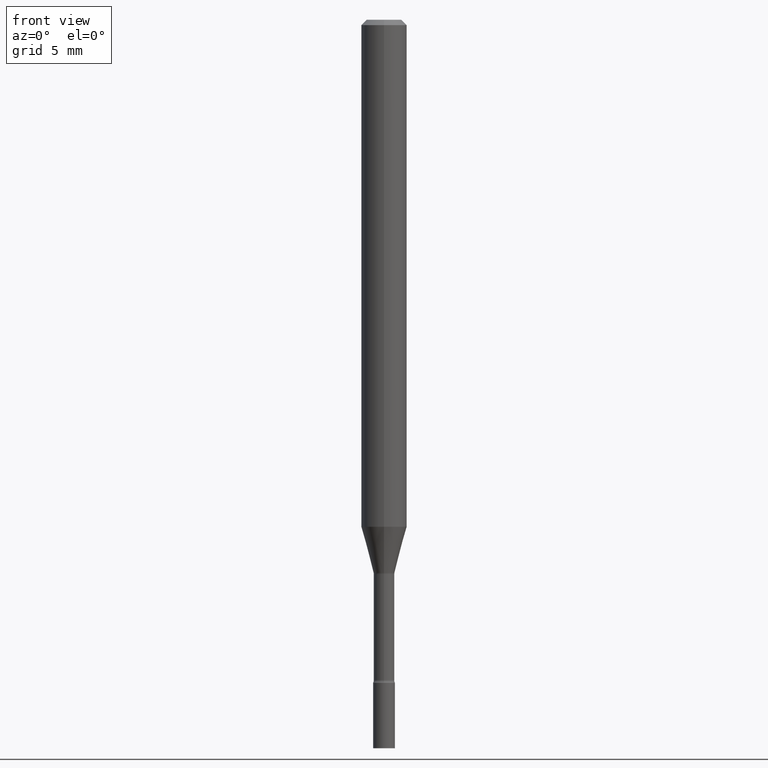
[diagram: clean part render]
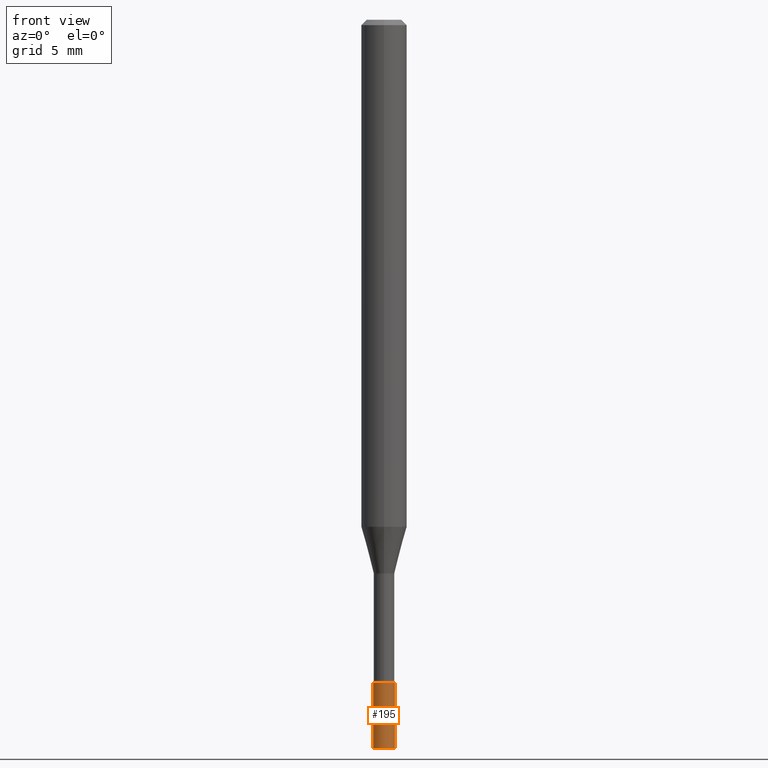
[diagram: same view with one face highlighted and labeled with its STEP entity id]
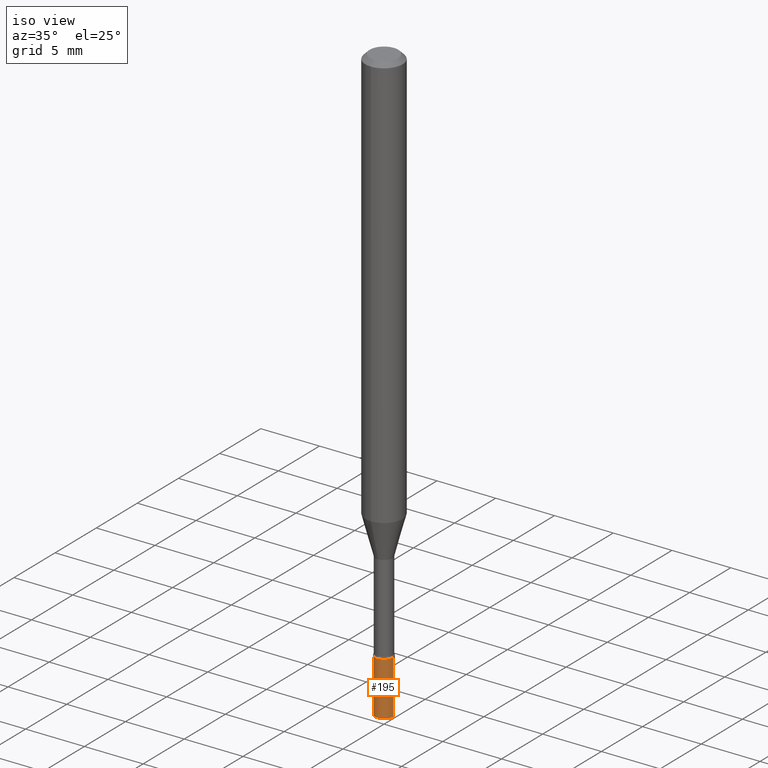
[diagram: same view with one face highlighted and labeled with its STEP entity id]
A machine part, front view. The second image highlights one B-rep face of the part: STEP entity #195.
A second angle (iso view) of the same face is appended — the face is thin or edge-on in the first view.
In plain terms, the highlighted cylindrical surface (edge-blend (fillet) strip) has radius 0.762 mm, axis along (-0, 0, 1).
Its self-contained STEP definition (entity closure, byte-faithful):
#20 = DIRECTION ( 'NONE',  ( 1.000000000000000000, -6.982962677686268288E-15, 0.000000000000000000 ) ) ;
#23 = CARTESIAN_POINT ( 'NONE',  ( -0.02999999999999999889, -6.455566536462378445E-15, -1.820000000000000062 ) ) ;
#30 = CARTESIAN_POINT ( 'NONE',  ( 0.000000000000000000, 0.000000000000000000, 0.000000000000000000 ) ) ;
#47 = AXIS2_PLACEMENT_3D ( 'NONE', #30, #278, #153 ) ;
#75 = LINE ( 'NONE', #235, #365 ) ;
#90 = EDGE_CURVE ( 'NONE', #286, #277, #228, .T. ) ;
#103 = CARTESIAN_POINT ( 'NONE',  ( 0.02999999999999999889, -6.563984917025112954E-15, -1.820000000000000062 ) ) ;
#107 = DIRECTION ( 'NONE',  ( -2.445468806185136597E-29, 3.491481338843145583E-15, 1.000000000000000000 ) ) ;
#112 = CARTESIAN_POINT ( 'NONE',  ( -0.02999999999999999889, -6.455566536462378445E-15, -2.000000000000000000 ) ) ;
#141 = ORIENTED_EDGE ( 'NONE', *, *, #90, .F. ) ;
#144 = DIRECTION ( 'NONE',  ( -2.445468806185136597E-29, 3.491481338843145583E-15, 1.000000000000000000 ) ) ;
#153 = DIRECTION ( 'NONE',  ( 1.000000000000000000, -6.982962677686267499E-15, 4.876176775795936353E-29 ) ) ;
#164 = ORIENTED_EDGE ( 'NONE', *, *, #270, .T. ) ;
#170 = VERTEX_POINT ( 'NONE', #112 ) ;
#195 = ADVANCED_FACE ( 'NONE', ( #226 ), #312, .T. ) ;
#212 = CARTESIAN_POINT ( 'NONE',  ( 0.02999999999999999889, -7.192451558016878693E-15, -2.000000000000000000 ) ) ;
#218 = AXIS2_PLACEMENT_3D ( 'NONE', #353, #144, #307 ) ;
#220 = CARTESIAN_POINT ( 'NONE',  ( 4.450753227256948741E-29, -6.354496036694524637E-15, -1.820000000000000062 ) ) ;
#223 = CARTESIAN_POINT ( 'NONE',  ( 0.02999999999999999889, -2.094888803305880210E-16, 1.462853032738780878E-30 ) ) ;
#226 = FACE_OUTER_BOUND ( 'NONE', #242, .T. ) ;
#228 = CIRCLE ( 'NONE', #401, 0.02999999999999999889 ) ;
#235 = CARTESIAN_POINT ( 'NONE',  ( -0.02999999999999999889, 2.131628207280300479E-16, -1.475680527076471707E-30 ) ) ;
#242 = EDGE_LOOP ( 'NONE', ( #490, #450, #164, #141 ) ) ;
#261 = EDGE_CURVE ( 'NONE', #170, #457, #441, .T. ) ;
#270 = EDGE_CURVE ( 'NONE', #457, #277, #503, .T. ) ;
#277 = VERTEX_POINT ( 'NONE', #103 ) ;
#278 = DIRECTION ( 'NONE',  ( -2.445468806185136597E-29, 3.491481338843145583E-15, 1.000000000000000000 ) ) ;
#286 = VERTEX_POINT ( 'NONE', #23 ) ;
#307 = DIRECTION ( 'NONE',  ( 1.000000000000000000, -6.982962677686268288E-15, 0.000000000000000000 ) ) ;
#312 = CYLINDRICAL_SURFACE ( 'NONE', #47, 0.02999999999999999889 ) ;
#353 = CARTESIAN_POINT ( 'NONE',  ( 4.890937612370273194E-29, -6.982962677686291165E-15, -2.000000000000000000 ) ) ;
#365 = VECTOR ( 'NONE', #394, 39.37007874015748143 ) ;
#394 = DIRECTION ( 'NONE',  ( -2.445468806185136877E-29, 3.491481338843145188E-15, 1.000000000000000000 ) ) ;
#401 = AXIS2_PLACEMENT_3D ( 'NONE', #220, #107, #20 ) ;
#429 = EDGE_CURVE ( 'NONE', #170, #286, #75, .T. ) ;
#441 = CIRCLE ( 'NONE', #218, 0.02999999999999999889 ) ;
#450 = ORIENTED_EDGE ( 'NONE', *, *, #261, .T. ) ;
#455 = DIRECTION ( 'NONE',  ( -2.445468806185136877E-29, 3.491481338843145188E-15, 1.000000000000000000 ) ) ;
#457 = VERTEX_POINT ( 'NONE', #212 ) ;
#480 = VECTOR ( 'NONE', #455, 39.37007874015748143 ) ;
#490 = ORIENTED_EDGE ( 'NONE', *, *, #429, .F. ) ;
#503 = LINE ( 'NONE', #223, #480 ) ;